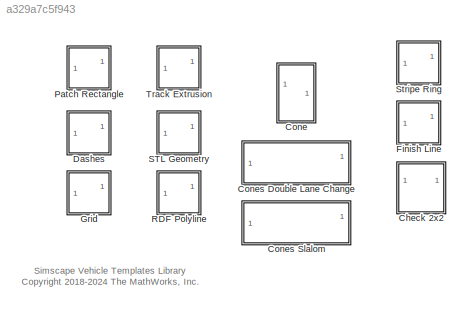
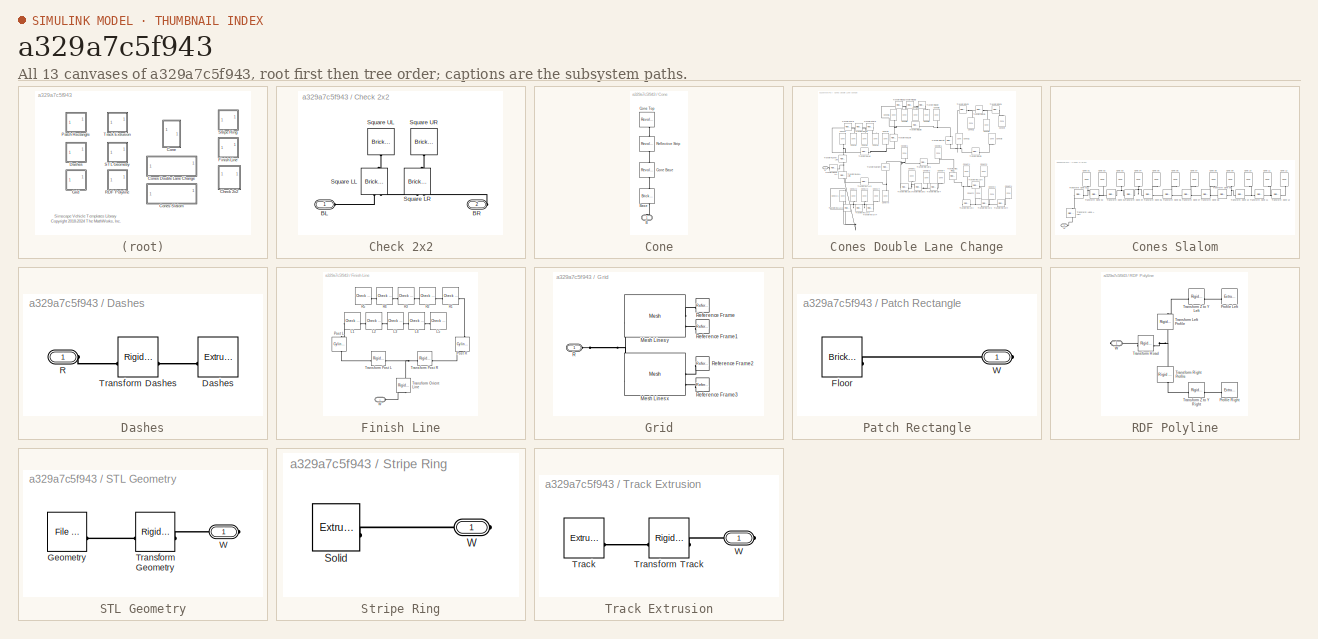
[diagram: thumbnail index - all 13 canvases of the model, root first then tree order]
MODEL slx_a329a7c5f943
KIND library
CONFIG AbsTol = auto
CONFIG EnableMultiTasking = off
CONFIG FixedStep = auto
CONFIG MaxStep = auto
CONFIG MinStep = auto
CONFIG RelTol = 1e-3
CONFIG SampleTimeConstraint = Unconstrained
CONFIG SolverName = VariableStepAuto
CONFIG StartTime = 0.0
CONFIG StopTime = 10.0
BLOCK [SubSystem] Check 2x2
BLOCK [PMIOPort] Check 2x2/BL
  Side = Left
BLOCK [PMIOPort] Check 2x2/BR
  Port = 2
  Side = Right
BLOCK [Reference] Check 2x2/Square LL  REF=sm_lib/Body Elements/Brick Solid
  NameLocation = left
  SourceBlock = sm_lib/Body Elements/Brick Solid
  SourceType = Brick Solid
BLOCK [Reference] Check 2x2/Square LR  REF=sm_lib/Body Elements/Brick Solid
  NameLocation = right
  SourceBlock = sm_lib/Body Elements/Brick Solid
  SourceType = Brick Solid
BLOCK [Reference] Check 2x2/Square UL  REF=sm_lib/Body Elements/Brick Solid
  NameLocation = left
  SourceBlock = sm_lib/Body Elements/Brick Solid
  SourceType = Brick Solid
BLOCK [Reference] Check 2x2/Square UR  REF=sm_lib/Body Elements/Brick Solid
  NameLocation = right
  SourceBlock = sm_lib/Body Elements/Brick Solid
  SourceType = Brick Solid
BLOCK [SubSystem] Cone
BLOCK [PMIOPort] Cone/B
  NameLocation = right
  Side = Left
BLOCK [Reference] Cone/Base  REF=sm_lib/Body Elements/Brick Solid
  NameLocation = right
  SourceBlock = sm_lib/Body Elements/Brick Solid
  SourceType = Brick Solid
BLOCK [Reference] Cone/Cone Base  REF=sm_lib/Body Elements/Revolved Solid
  NameLocation = right
  SourceBlock = sm_lib/Body Elements/Revolved Solid
  SourceType = Revolved Solid
BLOCK [Reference] Cone/Cone Top  REF=sm_lib/Body Elements/Revolved Solid
  NameLocation = right
  SourceBlock = sm_lib/Body Elements/Revolved Solid
  SourceType = Revolved Solid
BLOCK [Reference] Cone/Reflective Strip  REF=sm_lib/Body Elements/Revolved Solid
  NameLocation = right
  SourceBlock = sm_lib/Body Elements/Revolved Solid
  SourceType = Revolved Solid
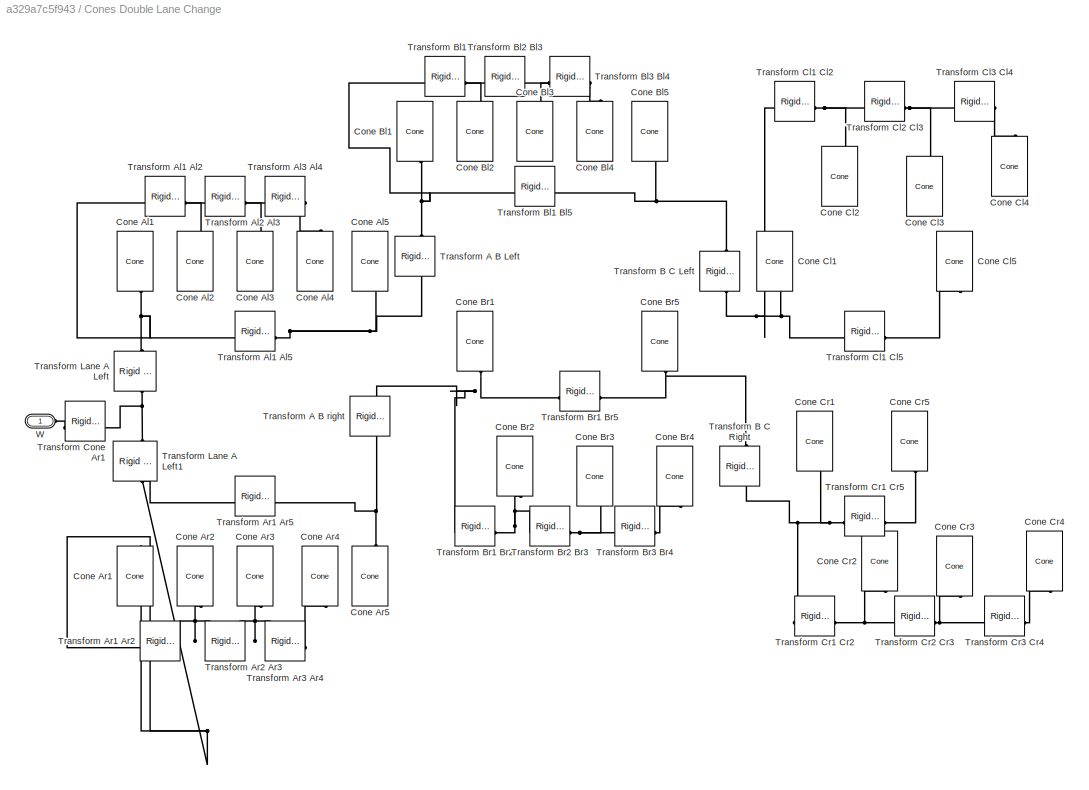
BLOCK [SubSystem] Cones Double Lane Change
BLOCK [Reference] Cones Double Lane Change/Cone Al1  REF=$bdroot/Cone
  NameLocation = left
  SourceBlock = $bdroot/Cone
  SourceType = Cone
BLOCK [Reference] Cones Double Lane Change/Cone Al2  REF=$bdroot/Cone
  NameLocation = left
  SourceBlock = $bdroot/Cone
  SourceType = Cone
BLOCK [Reference] Cones Double Lane Change/Cone Al3  REF=$bdroot/Cone
  NameLocation = left
  SourceBlock = $bdroot/Cone
  SourceType = Cone
BLOCK [Reference] Cones Double Lane Change/Cone Al4  REF=$bdroot/Cone
  NameLocation = left
  SourceBlock = $bdroot/Cone
  SourceType = Cone
BLOCK [Reference] Cones Double Lane Change/Cone Al5  REF=$bdroot/Cone
  NameLocation = right
  SourceBlock = $bdroot/Cone
  SourceType = Cone
BLOCK [Reference] Cones Double Lane Change/Cone Ar1  REF=$bdroot/Cone
  NameLocation = left
  SourceBlock = $bdroot/Cone
  SourceType = Cone
BLOCK [Reference] Cones Double Lane Change/Cone Ar2  REF=$bdroot/Cone
  NameLocation = right
  SourceBlock = $bdroot/Cone
  SourceType = Cone
BLOCK [Reference] Cones Double Lane Change/Cone Ar3  REF=$bdroot/Cone
  NameLocation = right
  SourceBlock = $bdroot/Cone
  SourceType = Cone
BLOCK [Reference] Cones Double Lane Change/Cone Ar4  REF=$bdroot/Cone
  NameLocation = right
  SourceBlock = $bdroot/Cone
  SourceType = Cone
BLOCK [Reference] Cones Double Lane Change/Cone Ar5  REF=$bdroot/Cone
  NameLocation = right
  SourceBlock = $bdroot/Cone
  SourceType = Cone
BLOCK [Reference] Cones Double Lane Change/Cone Bl1  REF=$bdroot/Cone
  NameLocation = left
  SourceBlock = $bdroot/Cone
  SourceType = Cone
BLOCK [Reference] Cones Double Lane Change/Cone Bl2  REF=$bdroot/Cone
  NameLocation = left
  SourceBlock = $bdroot/Cone
  SourceType = Cone
BLOCK [Reference] Cones Double Lane Change/Cone Bl3  REF=$bdroot/Cone
  NameLocation = left
  SourceBlock = $bdroot/Cone
  SourceType = Cone
BLOCK [Reference] Cones Double Lane Change/Cone Bl4  REF=$bdroot/Cone
  NameLocation = left
  SourceBlock = $bdroot/Cone
  SourceType = Cone
BLOCK [Reference] Cones Double Lane Change/Cone Bl5  REF=$bdroot/Cone
  NameLocation = right
  SourceBlock = $bdroot/Cone
  SourceType = Cone
BLOCK [Reference] Cones Double Lane Change/Cone Br1  REF=$bdroot/Cone
  NameLocation = right
  SourceBlock = $bdroot/Cone
  SourceType = Cone
BLOCK [Reference] Cones Double Lane Change/Cone Br2  REF=$bdroot/Cone
  NameLocation = left
  SourceBlock = $bdroot/Cone
  SourceType = Cone
BLOCK [Reference] Cones Double Lane Change/Cone Br3  REF=$bdroot/Cone
  NameLocation = right
  SourceBlock = $bdroot/Cone
  SourceType = Cone
BLOCK [Reference] Cones Double Lane Change/Cone Br4  REF=$bdroot/Cone
  NameLocation = right
  SourceBlock = $bdroot/Cone
  SourceType = Cone
BLOCK [Reference] Cones Double Lane Change/Cone Br5  REF=$bdroot/Cone
  NameLocation = right
  SourceBlock = $bdroot/Cone
  SourceType = Cone
BLOCK [Reference] Cones Double Lane Change/Cone Cl1  REF=$bdroot/Cone
  NameLocation = right
  SourceBlock = $bdroot/Cone
  SourceType = Cone
BLOCK [Reference] Cones Double Lane Change/Cone Cl2  REF=$bdroot/Cone
  NameLocation = left
  SourceBlock = $bdroot/Cone
  SourceType = Cone
BLOCK [Reference] Cones Double Lane Change/Cone Cl3  REF=$bdroot/Cone
  NameLocation = left
  SourceBlock = $bdroot/Cone
  SourceType = Cone
BLOCK [Reference] Cones Double Lane Change/Cone Cl4  REF=$bdroot/Cone
  NameLocation = left
  SourceBlock = $bdroot/Cone
  SourceType = Cone
BLOCK [Reference] Cones Double Lane Change/Cone Cl5  REF=$bdroot/Cone
  NameLocation = right
  SourceBlock = $bdroot/Cone
  SourceType = Cone
BLOCK [Reference] Cones Double Lane Change/Cone Cr1  REF=$bdroot/Cone
  NameLocation = right
  SourceBlock = $bdroot/Cone
  SourceType = Cone
BLOCK [Reference] Cones Double Lane Change/Cone Cr2  REF=$bdroot/Cone
  NameLocation = right
  SourceBlock = $bdroot/Cone
  SourceType = Cone
BLOCK [Reference] Cones Double Lane Change/Cone Cr3  REF=$bdroot/Cone
  NameLocation = right
  SourceBlock = $bdroot/Cone
  SourceType = Cone
BLOCK [Reference] Cones Double Lane Change/Cone Cr4  REF=$bdroot/Cone
  NameLocation = right
  SourceBlock = $bdroot/Cone
  SourceType = Cone
BLOCK [Reference] Cones Double Lane Change/Cone Cr5  REF=$bdroot/Cone
  NameLocation = right
  SourceBlock = $bdroot/Cone
  SourceType = Cone
BLOCK [Reference] Cones Double Lane Change/Transform A B Left  REF=sm_lib/Frames and
Transforms/Rigid
Transform
  NameLocation = right
  SourceBlock = sm_lib/Frames and\nTransforms/Rigid\nTransform
  SourceType = Rigid\nTransform
BLOCK [Reference] Cones Double Lane Change/Transform A B right  REF=sm_lib/Frames and
Transforms/Rigid
Transform
  NameLocation = left
  SourceBlock = sm_lib/Frames and\nTransforms/Rigid\nTransform
  SourceType = Rigid\nTransform
BLOCK [Reference] Cones Double Lane Change/Transform Al1 Al2  REF=sm_lib/Frames and
Transforms/Rigid
Transform
  NameLocation = top
  SourceBlock = sm_lib/Frames and\nTransforms/Rigid\nTransform
  SourceType = Rigid\nTransform
BLOCK [Reference] Cones Double Lane Change/Transform Al1 Al5  REF=sm_lib/Frames and
Transforms/Rigid
Transform
  SourceBlock = sm_lib/Frames and\nTransforms/Rigid\nTransform
  SourceType = Rigid\nTransform
BLOCK [Reference] Cones Double Lane Change/Transform Al2 Al3  REF=sm_lib/Frames and
Transforms/Rigid
Transform
  NameLocation = top
  SourceBlock = sm_lib/Frames and\nTransforms/Rigid\nTransform
  SourceType = Rigid\nTransform
BLOCK [Reference] Cones Double Lane Change/Transform Al3 Al4  REF=sm_lib/Frames and
Transforms/Rigid
Transform
  NameLocation = top
  SourceBlock = sm_lib/Frames and\nTransforms/Rigid\nTransform
  SourceType = Rigid\nTransform
BLOCK [Reference] Cones Double Lane Change/Transform Ar1 Ar2  REF=sm_lib/Frames and
Transforms/Rigid
Transform
  SourceBlock = sm_lib/Frames and\nTransforms/Rigid\nTransform
  SourceType = Rigid\nTransform
BLOCK [Reference] Cones Double Lane Change/Transform Ar1 Ar5  REF=sm_lib/Frames and
Transforms/Rigid
Transform
  NameLocation = top
  SourceBlock = sm_lib/Frames and\nTransforms/Rigid\nTransform
  SourceType = Rigid\nTransform
BLOCK [Reference] Cones Double Lane Change/Transform Ar2 Ar3  REF=sm_lib/Frames and
Transforms/Rigid
Transform
  SourceBlock = sm_lib/Frames and\nTransforms/Rigid\nTransform
  SourceType = Rigid\nTransform
BLOCK [Reference] Cones Double Lane Change/Transform Ar3 Ar4  REF=sm_lib/Frames and
Transforms/Rigid
Transform
  SourceBlock = sm_lib/Frames and\nTransforms/Rigid\nTransform
  SourceType = Rigid\nTransform
BLOCK [Reference] Cones Double Lane Change/Transform B C Left  REF=sm_lib/Frames and
Transforms/Rigid
Transform
  NameLocation = left
  SourceBlock = sm_lib/Frames and\nTransforms/Rigid\nTransform
  SourceType = Rigid\nTransform
BLOCK [Reference] Cones Double Lane Change/Transform B C Right  REF=sm_lib/Frames and
Transforms/Rigid
Transform
  NameLocation = right
  SourceBlock = sm_lib/Frames and\nTransforms/Rigid\nTransform
  SourceType = Rigid\nTransform
BLOCK [Reference] Cones Double Lane Change/Transform Bl1 Bl1  REF=sm_lib/Frames and
Transforms/Rigid
Transform
  NameLocation = top
  SourceBlock = sm_lib/Frames and\nTransforms/Rigid\nTransform
  SourceType = Rigid\nTransform
BLOCK [Reference] Cones Double Lane Change/Transform Bl1 Bl5  REF=sm_lib/Frames and
Transforms/Rigid
Transform
  SourceBlock = sm_lib/Frames and\nTransforms/Rigid\nTransform
  SourceType = Rigid\nTransform
BLOCK [Reference] Cones Double Lane Change/Transform Bl2 Bl3  REF=sm_lib/Frames and
Transforms/Rigid
Transform
  NameLocation = top
  SourceBlock = sm_lib/Frames and\nTransforms/Rigid\nTransform
  SourceType = Rigid\nTransform
BLOCK [Reference] Cones Double Lane Change/Transform Bl3 Bl4  REF=sm_lib/Frames and
Transforms/Rigid
Transform
  NameLocation = top
  SourceBlock = sm_lib/Frames and\nTransforms/Rigid\nTransform
  SourceType = Rigid\nTransform
BLOCK [Reference] Cones Double Lane Change/Transform Br1 Br2  REF=sm_lib/Frames and
Transforms/Rigid
Transform
  SourceBlock = sm_lib/Frames and\nTransforms/Rigid\nTransform
  SourceType = Rigid\nTransform
BLOCK [Reference] Cones Double Lane Change/Transform Br1 Br5  REF=sm_lib/Frames and
Transforms/Rigid
Transform
  SourceBlock = sm_lib/Frames and\nTransforms/Rigid\nTransform
  SourceType = Rigid\nTransform
BLOCK [Reference] Cones Double Lane Change/Transform Br2 Br3  REF=sm_lib/Frames and
Transforms/Rigid
Transform
  SourceBlock = sm_lib/Frames and\nTransforms/Rigid\nTransform
  SourceType = Rigid\nTransform
BLOCK [Reference] Cones Double Lane Change/Transform Br3 Br4  REF=sm_lib/Frames and
Transforms/Rigid
Transform
  SourceBlock = sm_lib/Frames and\nTransforms/Rigid\nTransform
  SourceType = Rigid\nTransform
BLOCK [Reference] Cones Double Lane Change/Transform Cl1 Cl2  REF=sm_lib/Frames and
Transforms/Rigid
Transform
  NameLocation = top
  SourceBlock = sm_lib/Frames and\nTransforms/Rigid\nTransform
  SourceType = Rigid\nTransform
BLOCK [Reference] Cones Double Lane Change/Transform Cl1 Cl5  REF=sm_lib/Frames and
Transforms/Rigid
Transform
  SourceBlock = sm_lib/Frames and\nTransforms/Rigid\nTransform
  SourceType = Rigid\nTransform
BLOCK [Reference] Cones Double Lane Change/Transform Cl2 Cl3  REF=sm_lib/Frames and
Transforms/Rigid
Transform
  NameLocation = top
  SourceBlock = sm_lib/Frames and\nTransforms/Rigid\nTransform
  SourceType = Rigid\nTransform
BLOCK [Reference] Cones Double Lane Change/Transform Cl3 Cl4  REF=sm_lib/Frames and
Transforms/Rigid
Transform
  NameLocation = top
  SourceBlock = sm_lib/Frames and\nTransforms/Rigid\nTransform
  SourceType = Rigid\nTransform
BLOCK [Reference] Cones Double Lane Change/Transform Cone Ar1  REF=sm_lib/Frames and
Transforms/Rigid
Transform
  SourceBlock = sm_lib/Frames and\nTransforms/Rigid\nTransform
  SourceType = Rigid\nTransform
BLOCK [Reference] Cones Double Lane Change/Transform Cr1 Cr2  REF=sm_lib/Frames and
Transforms/Rigid
Transform
  SourceBlock = sm_lib/Frames and\nTransforms/Rigid\nTransform
  SourceType = Rigid\nTransform
BLOCK [Reference] Cones Double Lane Change/Transform Cr1 Cr5  REF=sm_lib/Frames and
Transforms/Rigid
Transform
  SourceBlock = sm_lib/Frames and\nTransforms/Rigid\nTransform
  SourceType = Rigid\nTransform
BLOCK [Reference] Cones Double Lane Change/Transform Cr2 Cr3  REF=sm_lib/Frames and
Transforms/Rigid
Transform
  SourceBlock = sm_lib/Frames and\nTransforms/Rigid\nTransform
  SourceType = Rigid\nTransform
BLOCK [Reference] Cones Double Lane Change/Transform Cr3 Cr4  REF=sm_lib/Frames and
Transforms/Rigid
Transform
  SourceBlock = sm_lib/Frames and\nTransforms/Rigid\nTransform
  SourceType = Rigid\nTransform
BLOCK [Reference] Cones Double Lane Change/Transform Lane A Left  REF=sm_lib/Frames and
Transforms/Rigid
Transform
  NameLocation = left
  SourceBlock = sm_lib/Frames and\nTransforms/Rigid\nTransform
  SourceType = Rigid\nTransform
BLOCK [Reference] Cones Double Lane Change/Transform Lane A Left1  REF=sm_lib/Frames and
Transforms/Rigid
Transform
  NameLocation = left
  SourceBlock = sm_lib/Frames and\nTransforms/Rigid\nTransform
  SourceType = Rigid\nTransform
BLOCK [PMIOPort] Cones Double Lane Change/W
  Side = Left
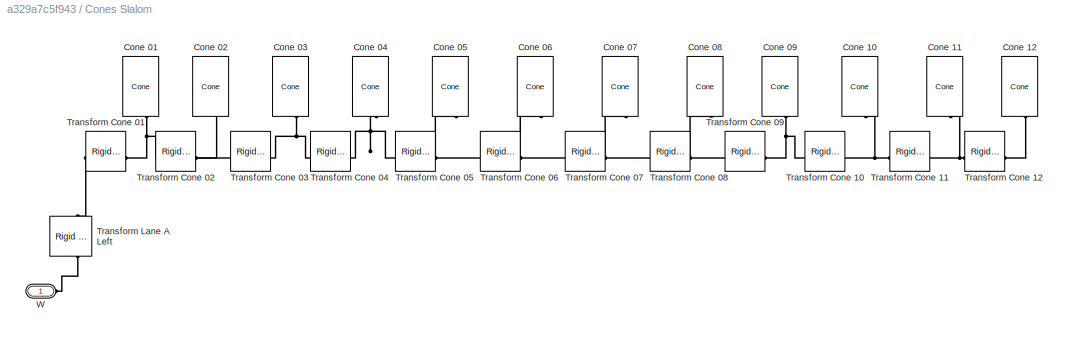
BLOCK [SubSystem] Cones Slalom
BLOCK [Reference] Cones Slalom/Cone 01  REF=$bdroot/Cone
  NameLocation = top
  SourceBlock = $bdroot/Cone
  SourceType = Cone
BLOCK [Reference] Cones Slalom/Cone 02  REF=$bdroot/Cone
  NameLocation = top
  SourceBlock = $bdroot/Cone
  SourceType = Cone
BLOCK [Reference] Cones Slalom/Cone 03  REF=$bdroot/Cone
  NameLocation = top
  SourceBlock = $bdroot/Cone
  SourceType = Cone
BLOCK [Reference] Cones Slalom/Cone 04  REF=$bdroot/Cone
  NameLocation = top
  SourceBlock = $bdroot/Cone
  SourceType = Cone
BLOCK [Reference] Cones Slalom/Cone 05  REF=$bdroot/Cone
  NameLocation = top
  SourceBlock = $bdroot/Cone
  SourceType = Cone
BLOCK [Reference] Cones Slalom/Cone 06  REF=$bdroot/Cone
  NameLocation = top
  SourceBlock = $bdroot/Cone
  SourceType = Cone
BLOCK [Reference] Cones Slalom/Cone 07  REF=$bdroot/Cone
  NameLocation = top
  SourceBlock = $bdroot/Cone
  SourceType = Cone
BLOCK [Reference] Cones Slalom/Cone 08  REF=$bdroot/Cone
  NameLocation = top
  SourceBlock = $bdroot/Cone
  SourceType = Cone
BLOCK [Reference] Cones Slalom/Cone 09  REF=$bdroot/Cone
  NameLocation = top
  SourceBlock = $bdroot/Cone
  SourceType = Cone
BLOCK [Reference] Cones Slalom/Cone 10  REF=$bdroot/Cone
  NameLocation = top
  SourceBlock = $bdroot/Cone
  SourceType = Cone
BLOCK [Reference] Cones Slalom/Cone 11  REF=$bdroot/Cone
  NameLocation = top
  SourceBlock = $bdroot/Cone
  SourceType = Cone
BLOCK [Reference] Cones Slalom/Cone 12  REF=$bdroot/Cone
  NameLocation = top
  SourceBlock = $bdroot/Cone
  SourceType = Cone
BLOCK [Reference] Cones Slalom/Transform Cone 01  REF=sm_lib/Frames and
Transforms/Rigid
Transform
  SourceBlock = sm_lib/Frames and\nTransforms/Rigid\nTransform
  SourceType = Rigid\nTransform
BLOCK [Reference] Cones Slalom/Transform Cone 02  REF=sm_lib/Frames and
Transforms/Rigid
Transform
  SourceBlock = sm_lib/Frames and\nTransforms/Rigid\nTransform
  SourceType = Rigid\nTransform
BLOCK [Reference] Cones Slalom/Transform Cone 03  REF=sm_lib/Frames and
Transforms/Rigid
Transform
  SourceBlock = sm_lib/Frames and\nTransforms/Rigid\nTransform
  SourceType = Rigid\nTransform
BLOCK [Reference] Cones Slalom/Transform Cone 04  REF=sm_lib/Frames and
Transforms/Rigid
Transform
  SourceBlock = sm_lib/Frames and\nTransforms/Rigid\nTransform
  SourceType = Rigid\nTransform
BLOCK [Reference] Cones Slalom/Transform Cone 05  REF=sm_lib/Frames and
Transforms/Rigid
Transform
  SourceBlock = sm_lib/Frames and\nTransforms/Rigid\nTransform
  SourceType = Rigid\nTransform
BLOCK [Reference] Cones Slalom/Transform Cone 06  REF=sm_lib/Frames and
Transforms/Rigid
Transform
  SourceBlock = sm_lib/Frames and\nTransforms/Rigid\nTransform
  SourceType = Rigid\nTransform
BLOCK [Reference] Cones Slalom/Transform Cone 07  REF=sm_lib/Frames and
Transforms/Rigid
Transform
  SourceBlock = sm_lib/Frames and\nTransforms/Rigid\nTransform
  SourceType = Rigid\nTransform
BLOCK [Reference] Cones Slalom/Transform Cone 08  REF=sm_lib/Frames and
Transforms/Rigid
Transform
  SourceBlock = sm_lib/Frames and\nTransforms/Rigid\nTransform
  SourceType = Rigid\nTransform
BLOCK [Reference] Cones Slalom/Transform Cone 09  REF=sm_lib/Frames and
Transforms/Rigid
Transform
  SourceBlock = sm_lib/Frames and\nTransforms/Rigid\nTransform
  SourceType = Rigid\nTransform
BLOCK [Reference] Cones Slalom/Transform Cone 10  REF=sm_lib/Frames and
Transforms/Rigid
Transform
  SourceBlock = sm_lib/Frames and\nTransforms/Rigid\nTransform
  SourceType = Rigid\nTransform
BLOCK [Reference] Cones Slalom/Transform Cone 11  REF=sm_lib/Frames and
Transforms/Rigid
Transform
  SourceBlock = sm_lib/Frames and\nTransforms/Rigid\nTransform
  SourceType = Rigid\nTransform
BLOCK [Reference] Cones Slalom/Transform Cone 12  REF=sm_lib/Frames and
Transforms/Rigid
Transform
  SourceBlock = sm_lib/Frames and\nTransforms/Rigid\nTransform
  SourceType = Rigid\nTransform
BLOCK [Reference] Cones Slalom/Transform Lane A Left  REF=sm_lib/Frames and
Transforms/Rigid
Transform
  NameLocation = left
  SourceBlock = sm_lib/Frames and\nTransforms/Rigid\nTransform
  SourceType = Rigid\nTransform
BLOCK [PMIOPort] Cones Slalom/W
  Side = Left
BLOCK [SubSystem] Dashes
BLOCK [Reference] Dashes/Dashes  REF=sm_lib/Body Elements/Extruded Solid
  SourceBlock = sm_lib/Body Elements/Extruded Solid
  SourceType = Extruded Solid
BLOCK [PMIOPort] Dashes/R
  Side = Left
BLOCK [Reference] Dashes/Transform Dashes  REF=sm_lib/Frames and
Transforms/Rigid
Transform
  SourceBlock = sm_lib/Frames and\nTransforms/Rigid\nTransform
  SourceType = Rigid\nTransform
BLOCK [SubSystem] Finish Line
BLOCK [Reference] Finish Line/L1  REF=$bdroot/Check 2x2
  SourceBlock = $bdroot/Check 2x2
BLOCK [Reference] Finish Line/L2  REF=$bdroot/Check 2x2
  SourceBlock = $bdroot/Check 2x2
BLOCK [Reference] Finish Line/L3  REF=$bdroot/Check 2x2
  SourceBlock = $bdroot/Check 2x2
BLOCK [Reference] Finish Line/L4  REF=$bdroot/Check 2x2
  SourceBlock = $bdroot/Check 2x2
BLOCK [Reference] Finish Line/L5  REF=$bdroot/Check 2x2
  SourceBlock = $bdroot/Check 2x2
BLOCK [Reference] Finish Line/Post L  REF=sm_lib/Body Elements/Cylindrical Solid
  NameLocation = right
  SourceBlock = sm_lib/Body Elements/Cylindrical Solid
  SourceType = Cylindrical Solid
BLOCK [Reference] Finish Line/Post R  REF=sm_lib/Body Elements/Cylindrical Solid
  NameLocation = left
  SourceBlock = sm_lib/Body Elements/Cylindrical Solid
  SourceType = Cylindrical Solid
BLOCK [Reference] Finish Line/R1  REF=$bdroot/Check 2x2
  SourceBlock = $bdroot/Check 2x2
BLOCK [Reference] Finish Line/R2  REF=$bdroot/Check 2x2
  SourceBlock = $bdroot/Check 2x2
BLOCK [Reference] Finish Line/R3  REF=$bdroot/Check 2x2
  SourceBlock = $bdroot/Check 2x2
BLOCK [Reference] Finish Line/R4  REF=$bdroot/Check 2x2
  SourceBlock = $bdroot/Check 2x2
BLOCK [Reference] Finish Line/R5  REF=$bdroot/Check 2x2
  SourceBlock = $bdroot/Check 2x2
BLOCK [Reference] Finish Line/Transform Orient Line  REF=sm_lib/Frames and
Transforms/Rigid
Transform
  NameLocation = right
  SourceBlock = sm_lib/Frames and\nTransforms/Rigid\nTransform
  SourceType = Rigid\nTransform
BLOCK [Reference] Finish Line/Transform Post L  REF=sm_lib/Frames and
Transforms/Rigid
Transform
  SourceBlock = sm_lib/Frames and\nTransforms/Rigid\nTransform
  SourceType = Rigid\nTransform
BLOCK [Reference] Finish Line/Transform Post R  REF=sm_lib/Frames and
Transforms/Rigid
Transform
  SourceBlock = sm_lib/Frames and\nTransforms/Rigid\nTransform
  SourceType = Rigid\nTransform
BLOCK [PMIOPort] Finish Line/W
  Side = Left
BLOCK [SubSystem] Grid
BLOCK [Reference] Grid/Mesh Lines x  REF=Multibody_Parts_Lib/Basic/Mesh
  SourceBlock = Multibody_Parts_Lib/Basic/Mesh
  SourceProductName = Simscape Multibody Parts Library
  SourceType = Rectangular Mesh
BLOCK [Reference] Grid/Mesh Lines y   REF=Multibody_Parts_Lib/Basic/Mesh
  SourceBlock = Multibody_Parts_Lib/Basic/Mesh
  SourceProductName = Simscape Multibody Parts Library
  SourceType = Rectangular Mesh
BLOCK [PMIOPort] Grid/R
  Side = Left
BLOCK [Reference] Grid/Reference Frame  REF=sm_lib/Frames and
Transforms/Reference
Frame
  NameLocation = top
  SourceBlock = sm_lib/Frames and\nTransforms/Reference\nFrame
  SourceType = Reference\nFrame
BLOCK [Reference] Grid/Reference Frame1  REF=sm_lib/Frames and
Transforms/Reference
Frame
  NameLocation = top
  SourceBlock = sm_lib/Frames and\nTransforms/Reference\nFrame
  SourceType = Reference\nFrame
BLOCK [Reference] Grid/Reference Frame2  REF=sm_lib/Frames and
Transforms/Reference
Frame
  NameLocation = top
  SourceBlock = sm_lib/Frames and\nTransforms/Reference\nFrame
  SourceType = Reference\nFrame
BLOCK [Reference] Grid/Reference Frame3  REF=sm_lib/Frames and
Transforms/Reference
Frame
  SourceBlock = sm_lib/Frames and\nTransforms/Reference\nFrame
  SourceType = Reference\nFrame
BLOCK [SubSystem] Patch Rectangle
BLOCK [Reference] Patch Rectangle/Floor  REF=sm_lib/Body Elements/Brick Solid
  SourceBlock = sm_lib/Body Elements/Brick Solid
  SourceType = Brick Solid
BLOCK [PMIOPort] Patch Rectangle/W
  Side = Right
BLOCK [SubSystem] RDF Polyline
BLOCK [Reference] RDF Polyline/Profile Left  REF=sm_lib/Body Elements/Extruded Solid
  SourceBlock = sm_lib/Body Elements/Extruded Solid
  SourceType = Extruded Solid
BLOCK [Reference] RDF Polyline/Profile Right  REF=sm_lib/Body Elements/Extruded Solid
  SourceBlock = sm_lib/Body Elements/Extruded Solid
  SourceType = Extruded Solid
BLOCK [Reference] RDF Polyline/Transform Left Profile  REF=sm_lib/Frames and
Transforms/Rigid
Transform
  NameLocation = right
  SourceBlock = sm_lib/Frames and\nTransforms/Rigid\nTransform
  SourceType = Rigid\nTransform
BLOCK [Reference] RDF Polyline/Transform Right Profile  REF=sm_lib/Frames and
Transforms/Rigid
Transform
  NameLocation = left
  SourceBlock = sm_lib/Frames and\nTransforms/Rigid\nTransform
  SourceType = Rigid\nTransform
BLOCK [Reference] RDF Polyline/Transform Road  REF=sm_lib/Frames and
Transforms/Rigid
Transform
  SourceBlock = sm_lib/Frames and\nTransforms/Rigid\nTransform
  SourceType = Rigid\nTransform
BLOCK [Reference] RDF Polyline/Transform Z to Y Left  REF=sm_lib/Frames and
Transforms/Rigid
Transform
  SourceBlock = sm_lib/Frames and\nTransforms/Rigid\nTransform
  SourceType = Rigid\nTransform
BLOCK [Reference] RDF Polyline/Transform Z to Y Right  REF=sm_lib/Frames and
Transforms/Rigid
Transform
  SourceBlock = sm_lib/Frames and\nTransforms/Rigid\nTransform
  SourceType = Rigid\nTransform
BLOCK [PMIOPort] RDF Polyline/W
  Side = Right
BLOCK [SubSystem] STL Geometry
BLOCK [Reference] STL Geometry/Geometry  REF=sm_lib/Body Elements/File Solid
  SourceBlock = sm_lib/Body Elements/File Solid
  SourceType = File Solid
BLOCK [Reference] STL Geometry/Transform Geometry  REF=sm_lib/Frames and
Transforms/Rigid
Transform
  SourceBlock = sm_lib/Frames and\nTransforms/Rigid\nTransform
  SourceType = Rigid\nTransform
BLOCK [PMIOPort] STL Geometry/W
  Side = Right
BLOCK [SubSystem] Stripe Ring
BLOCK [Reference] Stripe Ring/Solid  REF=sm_lib/Body Elements/Extruded Solid
  SourceBlock = sm_lib/Body Elements/Extruded Solid
  SourceType = Extruded Solid
BLOCK [PMIOPort] Stripe Ring/W
  Side = Right
BLOCK [SubSystem] Track Extrusion
BLOCK [Reference] Track Extrusion/Track  REF=sm_lib/Body Elements/Extruded Solid
  SourceBlock = sm_lib/Body Elements/Extruded Solid
  SourceType = Extruded Solid
BLOCK [Reference] Track Extrusion/Transform Track  REF=sm_lib/Frames and
Transforms/Rigid
Transform
  SourceBlock = sm_lib/Frames and\nTransforms/Rigid\nTransform
  SourceType = Rigid\nTransform
BLOCK [PMIOPort] Track Extrusion/W
  Side = Right
ANNOTATION (root): Simscape Vehicle Templates Library <copyright redacted>
PLINE Check 2x2/BL:RConn1 -- Check 2x2/Square LL:LConn1
PLINE Check 2x2/BR:RConn1 -- Check 2x2/Square LR:LConn2
PLINE Check 2x2/Square LL:LConn2 -- Check 2x2/Square LR:LConn1
PLINE Check 2x2/Square LL:RConn1 -- Check 2x2/Square UL:LConn1
PLINE Check 2x2/Square LR:RConn1 -- Check 2x2/Square UR:LConn1
PLINE Cone/B:RConn1 -- Cone/Base:LConn1
PLINE Cone/Base:RConn1 -- Cone/Cone Base:LConn1
PLINE Cone/Cone Base:RConn1 -- Cone/Reflective Strip:LConn1
PLINE Cone/Cone Top:LConn1 -- Cone/Reflective Strip:RConn1
PNET net1: Cones Double Lane Change/Cone Al1:LConn1 -- Cones Double Lane Change/Transform Al1 Al2:LConn1 -- Cones Double Lane Change/Transform Al1 Al5:LConn1 -- Cones Double Lane Change/Transform Lane A Left:RConn1
PNET net2: Cones Double Lane Change/Cone Al2:LConn1 -- Cones Double Lane Change/Transform Al1 Al2:RConn1 -- Cones Double Lane Change/Transform Al2 Al3:LConn1
PNET net3: Cones Double Lane Change/Cone Al3:LConn1 -- Cones Double Lane Change/Transform Al2 Al3:RConn1 -- Cones Double Lane Change/Transform Al3 Al4:LConn1
PLINE Cones Double Lane Change/Cone Al4:LConn1 -- Cones Double Lane Change/Transform Al3 Al4:RConn1
PNET net4: Cones Double Lane Change/Cone Al5:LConn1 -- Cones Double Lane Change/Transform A B Left:LConn1 -- Cones Double Lane Change/Transform Al1 Al5:RConn1
PNET net5: Cones Double Lane Change/Cone Ar1:LConn1 -- Cones Double Lane Change/Transform Ar1 Ar2:LConn1 -- Cones Double Lane Change/Transform Ar1 Ar5:LConn1 -- Cones Double Lane Change/Transform Lane A Left1:LConn1
PNET net6: Cones Double Lane Change/Cone Ar2:LConn1 -- Cones Double Lane Change/Transform Ar1 Ar2:RConn1 -- Cones Double Lane Change/Transform Ar2 Ar3:LConn1
PNET net7: Cones Double Lane Change/Cone Ar3:LConn1 -- Cones Double Lane Change/Transform Ar2 Ar3:RConn1 -- Cones Double Lane Change/Transform Ar3 Ar4:LConn1
PLINE Cones Double Lane Change/Cone Ar4:LConn1 -- Cones Double Lane Change/Transform Ar3 Ar4:RConn1
PNET net8: Cones Double Lane Change/Cone Ar5:LConn1 -- Cones Double Lane Change/Transform A B right:LConn1 -- Cones Double Lane Change/Transform Ar1 Ar5:RConn1
PNET net9: Cones Double Lane Change/Cone Bl1:LConn1 -- Cones Double Lane Change/Transform A B Left:RConn1 -- Cones Double Lane Change/Transform Bl1 Bl1:LConn1 -- Cones Double Lane Change/Transform Bl1 Bl5:LConn1
PNET net10: Cones Double Lane Change/Cone Bl2:LConn1 -- Cones Double Lane Change/Transform Bl1 Bl1:RConn1 -- Cones Double Lane Change/Transform Bl2 Bl3:LConn1
PNET net11: Cones Double Lane Change/Cone Bl3:LConn1 -- Cones Double Lane Change/Transform Bl2 Bl3:RConn1 -- Cones Double Lane Change/Transform Bl3 Bl4:LConn1
PLINE Cones Double Lane Change/Cone Bl4:LConn1 -- Cones Double Lane Change/Transform Bl3 Bl4:RConn1
PNET net12: Cones Double Lane Change/Cone Bl5:LConn1 -- Cones Double Lane Change/Transform B C Left:LConn1 -- Cones Double Lane Change/Transform Bl1 Bl5:RConn1
PNET net13: Cones Double Lane Change/Cone Br1:LConn1 -- Cones Double Lane Change/Transform A B right:RConn1 -- Cones Double Lane Change/Transform Br1 Br2:LConn1 -- Cones Double Lane Change/Transform Br1 Br5:LConn1
PNET net14: Cones Double Lane Change/Cone Br2:LConn1 -- Cones Double Lane Change/Transform Br1 Br2:RConn1 -- Cones Double Lane Change/Transform Br2 Br3:LConn1
PNET net15: Cones Double Lane Change/Cone Br3:LConn1 -- Cones Double Lane Change/Transform Br2 Br3:RConn1 -- Cones Double Lane Change/Transform Br3 Br4:LConn1
PLINE Cones Double Lane Change/Cone Br4:LConn1 -- Cones Double Lane Change/Transform Br3 Br4:RConn1
PNET net16: Cones Double Lane Change/Cone Br5:LConn1 -- Cones Double Lane Change/Transform B C Right:LConn1 -- Cones Double Lane Change/Transform Br1 Br5:RConn1
PNET net17: Cones Double Lane Change/Cone Cl1:LConn1 -- Cones Double Lane Change/Transform B C Left:RConn1 -- Cones Double Lane Change/Transform Cl1 Cl2:LConn1 -- Cones Double Lane Change/Transform Cl1 Cl5:LConn1
PNET net18: Cones Double Lane Change/Cone Cl2:LConn1 -- Cones Double Lane Change/Transform Cl1 Cl2:RConn1 -- Cones Double Lane Change/Transform Cl2 Cl3:LConn1
PNET net19: Cones Double Lane Change/Cone Cl3:LConn1 -- Cones Double Lane Change/Transform Cl2 Cl3:RConn1 -- Cones Double Lane Change/Transform Cl3 Cl4:LConn1
PLINE Cones Double Lane Change/Cone Cl4:LConn1 -- Cones Double Lane Change/Transform Cl3 Cl4:RConn1
PLINE Cones Double Lane Change/Cone Cl5:LConn1 -- Cones Double Lane Change/Transform Cl1 Cl5:RConn1
PNET net20: Cones Double Lane Change/Cone Cr1:LConn1 -- Cones Double Lane Change/Transform B C Right:RConn1 -- Cones Double Lane Change/Transform Cr1 Cr2:LConn1 -- Cones Double Lane Change/Transform Cr1 Cr5:LConn1
PNET net21: Cones Double Lane Change/Cone Cr2:LConn1 -- Cones Double Lane Change/Transform Cr1 Cr2:RConn1 -- Cones Double Lane Change/Transform Cr2 Cr3:LConn1
PNET net22: Cones Double Lane Change/Cone Cr3:LConn1 -- Cones Double Lane Change/Transform Cr2 Cr3:RConn1 -- Cones Double Lane Change/Transform Cr3 Cr4:LConn1
PLINE Cones Double Lane Change/Cone Cr4:LConn1 -- Cones Double Lane Change/Transform Cr3 Cr4:RConn1
PLINE Cones Double Lane Change/Cone Cr5:LConn1 -- Cones Double Lane Change/Transform Cr1 Cr5:RConn1
PLINE Cones Double Lane Change/Transform Cone Ar1:LConn1 -- Cones Double Lane Change/W:RConn1
PNET net23: Cones Double Lane Change/Transform Cone Ar1:RConn1 -- Cones Double Lane Change/Transform Lane A Left1:RConn1 -- Cones Double Lane Change/Transform Lane A Left:LConn1
PNET net24: Cones Slalom/Cone 01:LConn1 -- Cones Slalom/Transform Cone 01:RConn1 -- Cones Slalom/Transform Cone 02:LConn1
PNET net25: Cones Slalom/Cone 02:LConn1 -- Cones Slalom/Transform Cone 02:RConn1 -- Cones Slalom/Transform Cone 03:LConn1
PNET net26: Cones Slalom/Cone 03:LConn1 -- Cones Slalom/Transform Cone 03:RConn1 -- Cones Slalom/Transform Cone 04:LConn1
PNET net27: Cones Slalom/Cone 04:LConn1 -- Cones Slalom/Transform Cone 04:RConn1 -- Cones Slalom/Transform Cone 05:LConn1
PNET net28: Cones Slalom/Cone 05:LConn1 -- Cones Slalom/Transform Cone 05:RConn1 -- Cones Slalom/Transform Cone 06:LConn1
PNET net29: Cones Slalom/Cone 06:LConn1 -- Cones Slalom/Transform Cone 06:RConn1 -- Cones Slalom/Transform Cone 07:LConn1
PNET net30: Cones Slalom/Cone 07:LConn1 -- Cones Slalom/Transform Cone 07:RConn1 -- Cones Slalom/Transform Cone 08:LConn1
PNET net31: Cones Slalom/Cone 08:LConn1 -- Cones Slalom/Transform Cone 08:RConn1 -- Cones Slalom/Transform Cone 09:LConn1
PNET net32: Cones Slalom/Cone 09:LConn1 -- Cones Slalom/Transform Cone 09:RConn1 -- Cones Slalom/Transform Cone 10:LConn1
PNET net33: Cones Slalom/Cone 10:LConn1 -- Cones Slalom/Transform Cone 10:RConn1 -- Cones Slalom/Transform Cone 11:LConn1
PNET net34: Cones Slalom/Cone 11:LConn1 -- Cones Slalom/Transform Cone 11:RConn1 -- Cones Slalom/Transform Cone 12:LConn1
PLINE Cones Slalom/Cone 12:LConn1 -- Cones Slalom/Transform Cone 12:RConn1
PLINE Cones Slalom/Transform Cone 01:LConn1 -- Cones Slalom/Transform Lane A Left:RConn1
PLINE Cones Slalom/Transform Lane A Left:LConn1 -- Cones Slalom/W:RConn1
PLINE Dashes/Dashes:RConn1 -- Dashes/Transform Dashes:RConn1
PLINE Dashes/R:RConn1 -- Dashes/Transform Dashes:LConn1
PLINE Finish Line/L1:LConn1 -- Finish Line/Post L:RConn1
PLINE Finish Line/L1:RConn1 -- Finish Line/L2:LConn1
PLINE Finish Line/L2:RConn1 -- Finish Line/L3:LConn1
PLINE Finish Line/L3:RConn1 -- Finish Line/L4:LConn1
PLINE Finish Line/L4:RConn1 -- Finish Line/L5:LConn1
PLINE Finish Line/Post L:LConn1 -- Finish Line/Transform Post L:RConn1
PLINE Finish Line/Post R:LConn1 -- Finish Line/Transform Post R:LConn1
PLINE Finish Line/Post R:RConn1 -- Finish Line/R1:RConn1
PLINE Finish Line/R1:LConn1 -- Finish Line/R2:RConn1
PLINE Finish Line/R2:LConn1 -- Finish Line/R3:RConn1
PLINE Finish Line/R3:LConn1 -- Finish Line/R4:RConn1
PLINE Finish Line/R4:LConn1 -- Finish Line/R5:RConn1
PLINE Finish Line/Transform Orient Line:LConn1 -- Finish Line/W:RConn1
PNET net35: Finish Line/Transform Orient Line:RConn1 -- Finish Line/Transform Post L:LConn1 -- Finish Line/Transform Post R:RConn1
PNET net36: Grid/Mesh Lines x:LConn1 -- Grid/Mesh Lines y :LConn1 -- Grid/R:RConn1
PLINE Grid/Mesh Lines x:RConn1 -- Grid/Reference Frame2:RConn1
PLINE Grid/Mesh Lines x:RConn2 -- Grid/Reference Frame3:RConn1
PLINE Grid/Mesh Lines y :RConn1 -- Grid/Reference Frame:RConn1
PLINE Grid/Mesh Lines y :RConn2 -- Grid/Reference Frame1:RConn1
PLINE Patch Rectangle/Floor:LConn1 -- Patch Rectangle/W:RConn1
PLINE RDF Polyline/Profile Left:RConn1 -- RDF Polyline/Transform Z to Y Left:RConn1
PLINE RDF Polyline/Profile Right:RConn1 -- RDF Polyline/Transform Z to Y Right:RConn1
PNET net37: RDF Polyline/Transform Left Profile:LConn1 -- RDF Polyline/Transform Right Profile:LConn1 -- RDF Polyline/Transform Road:RConn1
PLINE RDF Polyline/Transform Left Profile:RConn1 -- RDF Polyline/Transform Z to Y Left:LConn1
PLINE RDF Polyline/Transform Right Profile:RConn1 -- RDF Polyline/Transform Z to Y Right:LConn1
PLINE RDF Polyline/Transform Road:LConn1 -- RDF Polyline/W:RConn1
PLINE Stripe Ring/Solid:RConn1 -- Stripe Ring/W:RConn1
PLINE Track Extrusion/Track:RConn1 -- Track Extrusion/Transform Track:RConn1
PLINE Track Extrusion/Transform Track:LConn1 -- Track Extrusion/W:RConn1
note: PNET lines group multi-terminal physical nets as a canonical sorted terminal list (undirected conserving connections); 2-terminal nets keep the pairwise PLINE form
